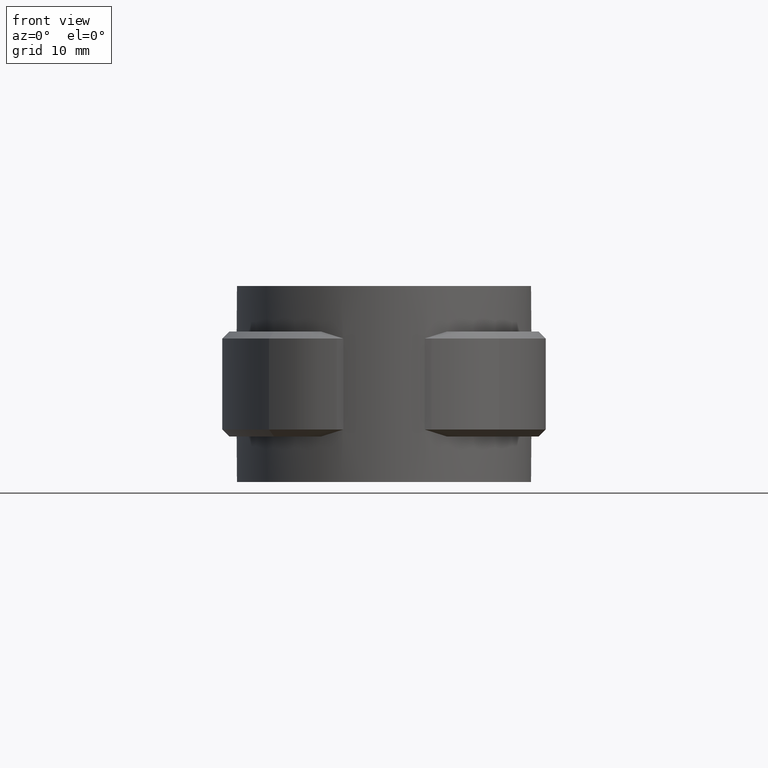
[diagram: clean part render]
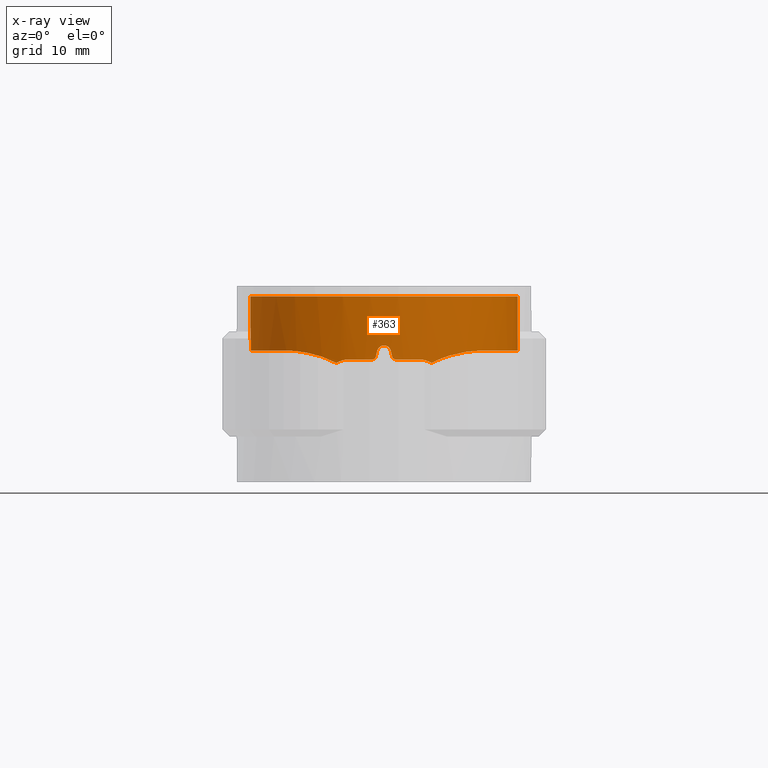
[diagram: x-ray — body ghosted, one internal face saturated and labeled with its STEP entity id]
A machine part, front view, then the same camera in x-ray: the body is ghosted and one INTERNAL B-rep face — a face not visible from any outside direction — is saturated and labeled: STEP entity #363.
In plain terms, the highlighted cylindrical surface (partial cylindrical patch) has radius 19.1 mm, axis along (0, 0, 1).
Its self-contained STEP definition (entity closure, byte-faithful):
#363 = ADVANCED_FACE( '', ( #708 ), #709, .T. );
#708 = FACE_OUTER_BOUND( '', #1448, .T. );
#709 = CYLINDRICAL_SURFACE( '', #1449, 19.1000000000000 );
#1448 = EDGE_LOOP( '', ( #2836, #2837, #2838, #2839, #2840, #2841, #2842, #2843, #2844, #2845, #2846, #2847, #2848, #2849, #2850, #2851 ) );
#1449 = AXIS2_PLACEMENT_3D( '', #2852, #2853, #2854 );
#2836 = ORIENTED_EDGE( '', *, *, #6588, .F. );
#2837 = ORIENTED_EDGE( '', *, *, #6589, .F. );
#2838 = ORIENTED_EDGE( '', *, *, #6590, .F. );
#2839 = ORIENTED_EDGE( '', *, *, #6591, .F. );
#2840 = ORIENTED_EDGE( '', *, *, #6592, .F. );
#2841 = ORIENTED_EDGE( '', *, *, #6593, .T. );
#2842 = ORIENTED_EDGE( '', *, *, #6594, .F. );
#2843 = ORIENTED_EDGE( '', *, *, #6595, .F. );
#2844 = ORIENTED_EDGE( '', *, *, #6596, .F. );
#2845 = ORIENTED_EDGE( '', *, *, #6597, .F. );
#2846 = ORIENTED_EDGE( '', *, *, #6598, .F. );
#2847 = ORIENTED_EDGE( '', *, *, #6599, .F. );
#2848 = ORIENTED_EDGE( '', *, *, #6600, .F. );
#2849 = ORIENTED_EDGE( '', *, *, #6601, .F. );
#2850 = ORIENTED_EDGE( '', *, *, #6602, .F. );
#2851 = ORIENTED_EDGE( '', *, *, #6603, .F. );
#2852 = CARTESIAN_POINT( '', ( 0.000000000000000, 0.000000000000000, 0.000000000000000 ) );
#2853 = DIRECTION( '', ( 0.000000000000000, 0.000000000000000, 1.00000000000000 ) );
#2854 = DIRECTION( '', ( 1.00000000000000, -6.12303176911189E-017, 0.000000000000000 ) );
#6588 = EDGE_CURVE( '', #7512, #7513, #7514, .T. );
#6589 = EDGE_CURVE( '', #7515, #7512, #7516, .T. );
#6590 = EDGE_CURVE( '', #7517, #7515, #7518, .T. );
#6591 = EDGE_CURVE( '', #7519, #7517, #7520, .T. );
#6592 = EDGE_CURVE( '', #7521, #7519, #7522, .T. );
#6593 = EDGE_CURVE( '', #7521, #7523, #7524, .T. );
#6594 = EDGE_CURVE( '', #7525, #7523, #7526, .T. );
#6595 = EDGE_CURVE( '', #7527, #7525, #7528, .T. );
#6596 = EDGE_CURVE( '', #7529, #7527, #7530, .T. );
#6597 = EDGE_CURVE( '', #7531, #7529, #7532, .T. );
#6598 = EDGE_CURVE( '', #7533, #7531, #7534, .T. );
#6599 = EDGE_CURVE( '', #7535, #7533, #7536, .T. );
#6600 = EDGE_CURVE( '', #7537, #7535, #7538, .T. );
#6601 = EDGE_CURVE( '', #7539, #7537, #7540, .T. );
#6602 = EDGE_CURVE( '', #7541, #7539, #7542, .T. );
#6603 = EDGE_CURVE( '', #7513, #7541, #7543, .T. );
#7512 = VERTEX_POINT( '', #9046 );
#7513 = VERTEX_POINT( '', #9047 );
#7514 = B_SPLINE_CURVE_WITH_KNOTS( '', 3, ( #9048, #9049, #9050, #9051, #9052, #9053, #9054, #9055 ), .UNSPECIFIED., .F., .F., ( 4, 2, 2, 4 ), ( 1.97925791081030E-016, 0.000994489686252687, 0.00149173452937893, 0.00198897937250518 ), .UNSPECIFIED. );
#7515 = VERTEX_POINT( '', #9056 );
#7516 = B_SPLINE_CURVE_WITH_KNOTS( '', 3, ( #9057, #9058, #9059, #9060, #9061, #9062, #9063, #9064, #9065, #9066, #9067, #9068 ), .UNSPECIFIED., .F., .F., ( 4, 2, 2, 2, 2, 4 ), ( 0.000000000000000, 0.00223644603303484, 0.00335466904955226, 0.00447289206606968, 0.00670933809910453, 0.00894578413213937 ), .UNSPECIFIED. );
#7517 = VERTEX_POINT( '', #9069 );
#7518 = B_SPLINE_CURVE_WITH_KNOTS( '', 3, ( #9070, #9071, #9072, #9073, #9074, #9075, #9076, #9077, #9078, #9079, #9080, #9081, #9082, #9083, #9084, #9085, #9086, #9087, #9088, #9089, #9090, #9091, #9092, #9093, #9094, #9095, #9096, #9097, #9098, #9099, #9100, #9101, #9102, #9103, #9104, #9105 ), .UNSPECIFIED., .F., .F., ( 4, 2, 2, 2, 2, 2, 2, 2, 2, 2, 2, 2, 2, 2, 2, 2, 2, 4 ), ( 0.000000000000000, 0.00475166728882034, 0.00593958411102543, 0.00712750093323052, 0.00950333457764069, 0.0118791682220509, 0.0130670850442560, 0.0142550018664610, 0.0190066691552814, 0.0201945859774865, 0.0213825027996916, 0.0237583364441018, 0.0249462532663069, 0.0261341700885119, 0.0285100037329221, 0.0308858373773323, 0.0332616710217425, 0.0380133383105628 ), .UNSPECIFIED. );
#7519 = VERTEX_POINT( '', #9106 );
#7520 = LINE( '', #9107, #9108 );
#7521 = VERTEX_POINT( '', #9109 );
#7522 = CIRCLE( '', #9110, 19.1000000000000 );
#7523 = VERTEX_POINT( '', #9111 );
#7524 = LINE( '', #9112, #9113 );
#7525 = VERTEX_POINT( '', #9114 );
#7526 = B_SPLINE_CURVE_WITH_KNOTS( '', 3, ( #9115, #9116, #9117, #9118, #9119, #9120, #9121, #9122, #9123, #9124, #9125, #9126, #9127, #9128, #9129, #9130, #9131, #9132, #9133, #9134, #9135, #9136, #9137, #9138, #9139, #9140, #9141, #9142, #9143, #9144, #9145, #9146, #9147, #9148, #9149, #9150 ), .UNSPECIFIED., .F., .F., ( 4, 2, 2, 2, 2, 2, 2, 2, 2, 2, 2, 2, 2, 2, 2, 2, 2, 4 ), ( 0.000000000000000, 0.00475173585367664, 0.00593966981709580, 0.00712760378051496, 0.00950347170735329, 0.0118793396341916, 0.0130672735976108, 0.0142552075610299, 0.0190069434147066, 0.0201948773781258, 0.0213828113415449, 0.0237586792683833, 0.0249466132318024, 0.0261345471952216, 0.0285104151220599, 0.0308862830488983, 0.0332621509757366, 0.0380138868294132 ), .UNSPECIFIED. );
#7527 = VERTEX_POINT( '', #9151 );
#7528 = B_SPLINE_CURVE_WITH_KNOTS( '', 3, ( #9152, #9153, #9154, #9155, #9156, #9157, #9158, #9159, #9160, #9161 ), .UNSPECIFIED., .F., .F., ( 4, 2, 2, 2, 4 ), ( 2.54367786189960E-016, 0.00221717465553031, 0.00443434931106037, 0.00665152396659043, 0.00886869862212048 ), .UNSPECIFIED. );
#7529 = VERTEX_POINT( '', #9162 );
#7530 = B_SPLINE_CURVE_WITH_KNOTS( '', 3, ( #9163, #9164, #9165, #9166, #9167, #9168, #9169, #9170 ), .UNSPECIFIED., .F., .F., ( 4, 2, 2, 4 ), ( 4.33680868994202E-018, 0.000994239728505949, 0.00149135959275892, 0.00198847945701190 ), .UNSPECIFIED. );
#7531 = VERTEX_POINT( '', #9171 );
#7532 = CIRCLE( '', #9172, 19.1000000000000 );
#7533 = VERTEX_POINT( '', #9173 );
#7534 = B_SPLINE_CURVE_WITH_KNOTS( '', 3, ( #9174, #9175, #9176, #9177, #9178, #9179 ), .UNSPECIFIED., .F., .F., ( 4, 2, 4 ), ( 2.16840434497101E-019, 0.000336337775742341, 0.000672675551484682 ), .UNSPECIFIED. );
#7535 = VERTEX_POINT( '', #9180 );
#7536 = ELLIPSE( '', #9181, 87.0111998839010, 19.1000000000000 );
#7537 = VERTEX_POINT( '', #9182 );
#7538 = B_SPLINE_CURVE_WITH_KNOTS( '', 3, ( #9183, #9184, #9185, #9186, #9187, #9188, #9189, #9190, #9191, #9192 ), .UNSPECIFIED., .F., .F., ( 4, 2, 2, 2, 4 ), ( 1.08420217248550E-019, 0.000671676872309648, 0.00134335374461929, 0.00201503061692894, 0.00268670748923859 ), .UNSPECIFIED. );
#7539 = VERTEX_POINT( '', #9193 );
#7540 = ELLIPSE( '', #9194, 87.0111554974908, 19.1000000000000 );
#7541 = VERTEX_POINT( '', #9195 );
#7542 = B_SPLINE_CURVE_WITH_KNOTS( '', 3, ( #9196, #9197, #9198, #9199, #9200, #9201 ), .UNSPECIFIED., .F., .F., ( 4, 2, 4 ), ( 1.06175769865612E-012, 0.000336327118998980, 0.000672654236936203 ), .UNSPECIFIED. );
#7543 = CIRCLE( '', #9202, 19.1000000000000 );
#9046 = CARTESIAN_POINT( '', ( 6.81905526878674, -17.8412579500783, -9.50984315978225 ) );
#9047 = CARTESIAN_POINT( '', ( 5.00000000000001, -18.4339360962329, -9.00000000000000 ) );
#9048 = CARTESIAN_POINT( '', ( 6.81905526878681, -17.8412579500783, -9.50984315978263 ) );
#9049 = CARTESIAN_POINT( '', ( 6.54606797206037, -17.9455956301490, -9.34377194447272 ) );
#9050 = CARTESIAN_POINT( '', ( 6.25697981576414, -18.0489218713348, -9.21811179728005 ) );
#9051 = CARTESIAN_POINT( '', ( 5.79870563454942, -18.1991993573056, -9.08865621529604 ) );
#9052 = CARTESIAN_POINT( '', ( 5.64089061904185, -18.2487782744803, -9.05543422189009 ) );
#9053 = CARTESIAN_POINT( '', ( 5.32286154237686, -18.3440644484210, -9.01122734908739 ) );
#9054 = CARTESIAN_POINT( '', ( 5.16225462618907, -18.3899263347414, -9.00000000000001 ) );
#9055 = CARTESIAN_POINT( '', ( 5.00000000000002, -18.4339360962329, -9.00000000000000 ) );
#9056 = CARTESIAN_POINT( '', ( 13.9497974310064, -13.0465800234959, -7.72134842581987 ) );
#9057 = CARTESIAN_POINT( '', ( 13.9497954125206, -13.0465784000564, -7.72133499237961 ) );
#9058 = CARTESIAN_POINT( '', ( 13.4388943300146, -13.5928492580895, -7.73208495331122 ) );
#9059 = CARTESIAN_POINT( '', ( 12.8991848821414, -14.1058136364962, -7.76985655857241 ) );
#9060 = CARTESIAN_POINT( '', ( 12.0473927316736, -14.8259423178299, -7.87181165090635 ) );
#9061 = CARTESIAN_POINT( '', ( 11.7561841678346, -15.0578109392465, -7.91361117780503 ) );
#9062 = CARTESIAN_POINT( '', ( 11.1671884797589, -15.4996592842449, -8.01298898541059 ) );
#9063 = CARTESIAN_POINT( '', ( 10.8685446083010, -15.7103939090100, -8.07063372135174 ) );
#9064 = CARTESIAN_POINT( '', ( 9.96146161010545, -16.3127630187514, -8.27055204157089 ) );
#9065 = CARTESIAN_POINT( '', ( 9.34169265753409, -16.6746458345190, -8.43895228852054 ) );
#9066 = CARTESIAN_POINT( '', ( 8.08185116317135, -17.3203555734521, -8.87947746419393 ) );
#9067 = CARTESIAN_POINT( '', ( 7.43687211988527, -17.6051239697605, -9.15322746837474 ) );
#9068 = CARTESIAN_POINT( '', ( 6.81905526878666, -17.8412579500783, -9.50984315978187 ) );
#9069 = CARTESIAN_POINT( '', ( 6.05609756097560, 18.1144605862815, -7.72310677885712 ) );
#9070 = CARTESIAN_POINT( '', ( 6.05609756097560, 18.1144605862815, -7.72310677885713 ) );
#9071 = CARTESIAN_POINT( '', ( 7.57988499216502, 17.6050219915457, -7.72562044002635 ) );
#9072 = CARTESIAN_POINT( '', ( 9.00816751026751, 16.9170964181711, -7.72756451349261 ) );
#9073 = CARTESIAN_POINT( '', ( 10.6780188819870, 15.8413301154164, -7.72556092751217 ) );
#9074 = CARTESIAN_POINT( '', ( 11.0061283400568, 15.6152236865161, -7.72500832282517 ) );
#9075 = CARTESIAN_POINT( '', ( 11.6503746423613, 15.1406354724747, -7.72378596501516 ) );
#9076 = CARTESIAN_POINT( '', ( 11.9668420762764, 14.8917493817034, -7.72311589650017 ) );
#9077 = CARTESIAN_POINT( '', ( 12.8849139716540, 14.1218634622731, -7.72140964571591 ) );
#9078 = CARTESIAN_POINT( '', ( 13.4598607434121, 13.5745846150423, -7.72102026270238 ) );
#9079 = CARTESIAN_POINT( '', ( 14.5374344637100, 12.4137100786320, -7.72209448719827 ) );
#9080 = CARTESIAN_POINT( '', ( 15.0400601391704, 11.8001131609034, -7.72312996766405 ) );
#9081 = CARTESIAN_POINT( '', ( 15.7386007948681, 10.8289179939538, -7.72407904110368 ) );
#9082 = CARTESIAN_POINT( '', ( 15.9628272010318, 10.4956569109212, -7.72430530797458 ) );
#9083 = CARTESIAN_POINT( '', ( 16.3891020472364, 9.81672044661760, -7.72448466694065 ) );
#9084 = CARTESIAN_POINT( '', ( 16.5905113531249, 9.47222763162375, -7.72443824659079 ) );
#9085 = CARTESIAN_POINT( '', ( 17.5402823297960, 7.72522543402083, -7.72358484488161 ) );
#9086 = CARTESIAN_POINT( '', ( 18.1194790042441, 6.25024218978829, -7.72049880465369 ) );
#9087 = CARTESIAN_POINT( '', ( 18.6122679087687, 4.30745559678048, -7.72188660815230 ) );
#9088 = CARTESIAN_POINT( '', ( 18.6986602107553, 3.91524051238957, -7.72231569395808 ) );
#9089 = CARTESIAN_POINT( '', ( 18.8457733830484, 3.13142580016287, -7.72318230473617 ) );
#9090 = CARTESIAN_POINT( '', ( 18.9067965259002, 2.73867230654701, -7.72362076679009 ) );
#9091 = CARTESIAN_POINT( '', ( 19.0528744824532, 1.55791445645596, -7.72466879871171 ) );
#9092 = CARTESIAN_POINT( '', ( 19.1010789124707, 0.767422245583554, -7.72496423500658 ) );
#9093 = CARTESIAN_POINT( '', ( 19.0994331793958, -0.423308819489145, -7.72453062126620 ) );
#9094 = CARTESIAN_POINT( '', ( 19.0865240286564, -0.821053671581318, -7.72425164256729 ) );
#9095 = CARTESIAN_POINT( '', ( 19.0355145642650, -1.61824407978250, -7.72352294976923 ) );
#9096 = CARTESIAN_POINT( '', ( 18.9971972768681, -2.01904579157393, -7.72307157109594 ) );
#9097 = CARTESIAN_POINT( '', ( 18.8453894194590, -3.20959479807132, -7.72177584465474 ) );
#9098 = CARTESIAN_POINT( '', ( 18.6954236915003, -3.98980160861872, -7.72102212156009 ) );
#9099 = CARTESIAN_POINT( '', ( 18.3008855043446, -5.52403599171066, -7.72185265540332 ) );
#9100 = CARTESIAN_POINT( '', ( 18.0563078995319, -6.27806224219268, -7.72306799754255 ) );
#9101 = CARTESIAN_POINT( '', ( 17.4709619283910, -7.75949803635878, -7.72476429751525 ) );
#9102 = CARTESIAN_POINT( '', ( 17.1277459475978, -8.49031780562762, -7.72522996562817 ) );
#9103 = CARTESIAN_POINT( '', ( 15.9774650379405, -10.5863743418335, -7.72453105418573 ) );
#9104 = CARTESIAN_POINT( '', ( 15.0472731359111, -11.8731220703944, -7.72082047648107 ) );
#9105 = CARTESIAN_POINT( '', ( 13.9497955370358, -13.0465782669210, -7.72131326548412 ) );
#9106 = CARTESIAN_POINT( '', ( 6.05609756097560, 18.1144605862815, 0.000000000000000 ) );
#9107 = CARTESIAN_POINT( '', ( 6.05609756097560, 18.1144605862815, 0.000000000000000 ) );
#9108 = VECTOR( '', #12716, 1000.00000000000 );
#9109 = CARTESIAN_POINT( '', ( -6.05609756097560, 18.1144605862815, 0.000000000000000 ) );
#9110 = AXIS2_PLACEMENT_3D( '', #12717, #12718, #12719 );
#9111 = CARTESIAN_POINT( '', ( -6.05609756097560, 18.1144605862815, -7.72310677885712 ) );
#9112 = CARTESIAN_POINT( '', ( -6.05609756097560, 18.1144605862815, 0.000000000000000 ) );
#9113 = VECTOR( '', #12720, 1000.00000000000 );
#9114 = CARTESIAN_POINT( '', ( -13.9495002325756, -13.0471055655874, -7.72147210245199 ) );
#9115 = CARTESIAN_POINT( '', ( -13.9493946604696, -13.0470068830542, -7.72131343666162 ) );
#9116 = CARTESIAN_POINT( '', ( -15.0469255575133, -11.8735659726484, -7.72086893969347 ) );
#9117 = CARTESIAN_POINT( '', ( -15.9754902272431, -10.5886267509001, -7.72452224589744 ) );
#9118 = CARTESIAN_POINT( '', ( -16.9318548389408, -8.84760550897533, -7.72511282097642 ) );
#9119 = CARTESIAN_POINT( '', ( -17.1127590124143, -8.49255882704011, -7.72507434829953 ) );
#9120 = CARTESIAN_POINT( '', ( -17.4533858333518, -7.76848758767492, -7.72469383738137 ) );
#9121 = CARTESIAN_POINT( '', ( -17.6132070502522, -7.39894935716129, -7.72435029883481 ) );
#9122 = CARTESIAN_POINT( '', ( -18.0540592052706, -6.28482322361987, -7.72307801222045 ) );
#9123 = CARTESIAN_POINT( '', ( -18.2991352403339, -5.52981623309247, -7.72186029597342 ) );
#9124 = CARTESIAN_POINT( '', ( -18.6941143166352, -3.99591141448074, -7.72102095234215 ) );
#9125 = CARTESIAN_POINT( '', ( -18.8440156359498, -3.21701309809631, -7.72176843711674 ) );
#9126 = CARTESIAN_POINT( '', ( -18.9959638412929, -2.03036508554608, -7.72305892498589 ) );
#9127 = CARTESIAN_POINT( '', ( -19.0344953012078, -1.63053996612878, -7.72351022653802 ) );
#9128 = CARTESIAN_POINT( '', ( -19.0861440920536, -0.830527332610736, -7.72424442688097 ) );
#9129 = CARTESIAN_POINT( '', ( -19.0992621820245, -0.431685932661075, -7.72452589586167 ) );
#9130 = CARTESIAN_POINT( '', ( -19.1028001199557, 1.55683199213116, -7.72525832470260 ) );
#9131 = CARTESIAN_POINT( '', ( -18.9099461684107, 3.12970534575030, -7.72274023031296 ) );
#9132 = CARTESIAN_POINT( '', ( -18.4183891166097, 5.07283326424858, -7.72133685120373 ) );
#9133 = CARTESIAN_POINT( '', ( -18.3076371761421, 5.45888524441150, -7.72123822413958 ) );
#9134 = CARTESIAN_POINT( '', ( -18.0638503475127, 6.21822464274006, -7.72154038961963 ) );
#9135 = CARTESIAN_POINT( '', ( -17.9305318291623, 6.59267123495357, -7.72188416329849 ) );
#9136 = CARTESIAN_POINT( '', ( -17.4968559939063, 7.70059563174549, -7.72303659295301 ) );
#9137 = CARTESIAN_POINT( '', ( -17.1629070093564, 8.41871687273530, -7.72392066943203 ) );
#9138 = CARTESIAN_POINT( '', ( -16.5945708255881, 9.46508118366199, -7.72443620625304 ) );
#9139 = CARTESIAN_POINT( '', ( -16.3938579132923, 9.80871836439765, -7.72448437886565 ) );
#9140 = CARTESIAN_POINT( '', ( -15.9694686003572, 10.4854950219574, -7.72431033092765 ) );
#9141 = CARTESIAN_POINT( '', ( -15.7449556609652, 10.8197239591928, -7.72408643352110 ) );
#9142 = CARTESIAN_POINT( '', ( -15.0446485330467, 11.7944381719801, -7.72313863958670 ) );
#9143 = CARTESIAN_POINT( '', ( -14.5413194962993, 12.4091672085947, -7.72210127062620 ) );
#9144 = CARTESIAN_POINT( '', ( -13.4639251185258, 13.5705609282390, -7.72102142538463 ) );
#9145 = CARTESIAN_POINT( '', ( -12.8898559434420, 14.1172218983093, -7.72140308669869 ) );
#9146 = CARTESIAN_POINT( '', ( -11.6697970816091, 15.1413399817472, -7.72366536320049 ) );
#9147 = CARTESIAN_POINT( '', ( -11.0200314457558, 15.6206307269095, -7.72514674941513 ) );
#9148 = CARTESIAN_POINT( '', ( -9.01054360190754, 16.9162907720867, -7.72756923279861 ) );
#9149 = CARTESIAN_POINT( '', ( -7.57990800194723, 17.6050142988250, -7.72562047798360 ) );
#9150 = CARTESIAN_POINT( '', ( -6.05609756097560, 18.1144605862815, -7.72310677885713 ) );
#9151 = CARTESIAN_POINT( '', ( -6.81905526878317, -17.8412579500797, -9.50984315978192 ) );
#9152 = CARTESIAN_POINT( '', ( -6.81905526878350, -17.8412579500795, -9.50984315978370 ) );
#9153 = CARTESIAN_POINT( '', ( -7.43598750137267, -17.6054620772274, -9.15373808708276 ) );
#9154 = CARTESIAN_POINT( '', ( -8.06693102980499, -17.3272357695888, -8.88556634490479 ) );
#9155 = CARTESIAN_POINT( '', ( -9.32416421350631, -16.6843770448320, -8.44423180668444 ) );
#9156 = CARTESIAN_POINT( '', ( -9.95472130519614, -16.3171536835714, -8.27209422177304 ) );
#9157 = CARTESIAN_POINT( '', ( -11.1745578306009, -15.5072640361854, -8.00313284810749 ) );
#9158 = CARTESIAN_POINT( '', ( -11.7673945676907, -15.0628417343531, -7.90523827948143 ) );
#9159 = CARTESIAN_POINT( '', ( -12.9007045533394, -14.1043467786827, -7.76976278081282 ) );
#9160 = CARTESIAN_POINT( '', ( -13.4393749583186, -13.5923016643587, -7.73205163330413 ) );
#9161 = CARTESIAN_POINT( '', ( -13.9493934299933, -13.0470081986354, -7.72134344142362 ) );
#9162 = CARTESIAN_POINT( '', ( -5.00000000000005, -18.4339360962329, -9.00000000000000 ) );
#9163 = CARTESIAN_POINT( '', ( -5.00000000000006, -18.4339360962329, -9.00000000000000 ) );
#9164 = CARTESIAN_POINT( '', ( -5.32461539822046, -18.3458877823715, -9.00000000000001 ) );
#9165 = CARTESIAN_POINT( '', ( -5.63936351103996, -18.2513298483383, -9.04428000316972 ) );
#9166 = CARTESIAN_POINT( '', ( -6.09787903306995, -18.1011529137972, -9.17286035344457 ) );
#9167 = CARTESIAN_POINT( '', ( -6.24918469729723, -18.0494241971064, -9.22663818442990 ) );
#9168 = CARTESIAN_POINT( '', ( -6.54128039419890, -17.9456310569590, -9.35360289695467 ) );
#9169 = CARTESIAN_POINT( '', ( -6.68253995693206, -17.8934350700536, -9.42679437319094 ) );
#9170 = CARTESIAN_POINT( '', ( -6.81905526878283, -17.8412579500798, -9.50984315978014 ) );
#9171 = CARTESIAN_POINT( '', ( -1.65000000000003, -19.0285969004549, -8.99999999999997 ) );
#9172 = AXIS2_PLACEMENT_3D( '', #12721, #12722, #12723 );
#9173 = CARTESIAN_POINT( '', ( -1.16219512100915, -19.0646086374912, -8.60975609337373 ) );
#9174 = CARTESIAN_POINT( '', ( -1.16219512100915, -19.0646086374912, -8.60975609337373 ) );
#9175 = CARTESIAN_POINT( '', ( -1.18715765708161, -19.0630868995849, -8.72070070258704 ) );
#9176 = CARTESIAN_POINT( '', ( -1.24923773707083, -19.0593103406564, -8.81980675290700 ) );
#9177 = CARTESIAN_POINT( '', ( -1.42662763242333, -19.0468537870059, -8.96151006055798 ) );
#9178 = CARTESIAN_POINT( '', ( -1.53670637462590, -19.0384207714867, -8.99999999999994 ) );
#9179 = CARTESIAN_POINT( '', ( -1.65000000000003, -19.0285969004549, -8.99999999999994 ) );
#9180 = CARTESIAN_POINT( '', ( -0.975610000000023, -19.0750671067732, -7.78048800000004 ) );
#9181 = AXIS2_PLACEMENT_3D( '', #12724, #12725, #12726 );
#9182 = CARTESIAN_POINT( '', ( 0.975609757981812, -19.0750671191514, -7.78048781325256 ) );
#9183 = CARTESIAN_POINT( '', ( 0.975609757981811, -19.0750671191514, -7.78048781325256 ) );
#9184 = CARTESIAN_POINT( '', ( 0.925757385009205, -19.0776168591459, -7.55892180128992 ) );
#9185 = CARTESIAN_POINT( '', ( 0.801997831383428, -19.0839791880777, -7.36098161968767 ) );
#9186 = CARTESIAN_POINT( '', ( 0.447436048285923, -19.0955822942172, -7.07731587360206 ) );
#9187 = CARTESIAN_POINT( '', ( 0.227117419891252, -19.1000000160627, -6.99999971248023 ) );
#9188 = CARTESIAN_POINT( '', ( -0.227120121551981, -19.0999999839372, -7.00000028065426 ) );
#9189 = CARTESIAN_POINT( '', ( -0.447488444089584, -19.0955808086857, -7.07734852942236 ) );
#9190 = CARTESIAN_POINT( '', ( -0.801994740210281, -19.0839790600733, -7.36098809107857 ) );
#9191 = CARTESIAN_POINT( '', ( -0.925757662153671, -19.0776168456052, -7.55892194611683 ) );
#9192 = CARTESIAN_POINT( '', ( -0.975610000000020, -19.0750671067732, -7.78048800000004 ) );
#9193 = CARTESIAN_POINT( '', ( 1.16219499999999, -19.0646086448680, -8.60975599999999 ) );
#9194 = AXIS2_PLACEMENT_3D( '', #12727, #12728, #12729 );
#9195 = CARTESIAN_POINT( '', ( 1.64999999892696, -19.0285969005479, -9.00000000000000 ) );
#9196 = CARTESIAN_POINT( '', ( 1.64999999999995, -19.0285969004549, -8.99999999999995 ) );
#9197 = CARTESIAN_POINT( '', ( 1.53670633508326, -19.0384207749155, -9.00000000048620 ) );
#9198 = CARTESIAN_POINT( '', ( 1.42662639973997, -19.0468538504881, -8.96150724786316 ) );
#9199 = CARTESIAN_POINT( '', ( 1.24924883677624, -19.0593095842976, -8.81981751941029 ) );
#9200 = CARTESIAN_POINT( '', ( 1.18715754849075, -19.0630869063637, -8.72070066218240 ) );
#9201 = CARTESIAN_POINT( '', ( 1.16219499999998, -19.0646086448680, -8.60975599999999 ) );
#9202 = AXIS2_PLACEMENT_3D( '', #12730, #12731, #12732 );
#12716 = DIRECTION( '', ( 0.000000000000000, 0.000000000000000, -1.00000000000000 ) );
#12717 = CARTESIAN_POINT( '', ( 0.000000000000000, 0.000000000000000, 0.000000000000000 ) );
#12718 = DIRECTION( '', ( 0.000000000000000, 0.000000000000000, 1.00000000000000 ) );
#12719 = DIRECTION( '', ( 1.00000000000000, 0.000000000000000, 0.000000000000000 ) );
#12720 = DIRECTION( '', ( 0.000000000000000, 0.000000000000000, -1.00000000000000 ) );
#12721 = CARTESIAN_POINT( '', ( 0.000000000000000, 0.000000000000000, -9.00000000000000 ) );
#12722 = DIRECTION( '', ( 6.12303176911189E-017, 0.000000000000000, -1.00000000000000 ) );
#12723 = DIRECTION( '', ( -1.00000000000000, 0.000000000000000, -6.12303176911189E-017 ) );
#12724 = CARTESIAN_POINT( '', ( 0.000000000000000, 0.000000000000000, -3.44443890776446 ) );
#12725 = DIRECTION( '', ( 0.975609806487711, 0.000000000000000, -0.219511971165610 ) );
#12726 = DIRECTION( '', ( -0.219511971165610, 0.000000000000000, -0.975609806487711 ) );
#12727 = CARTESIAN_POINT( '', ( 0.000000000000000, 0.000000000000000, -3.44444212055027 ) );
#12728 = DIRECTION( '', ( -0.975609781292647, 0.000000000000000, -0.219512083143762 ) );
#12729 = DIRECTION( '', ( 0.219512083143762, 0.000000000000000, -0.975609781292647 ) );
#12730 = CARTESIAN_POINT( '', ( 0.000000000000000, 0.000000000000000, -9.00000000000000 ) );
#12731 = DIRECTION( '', ( 6.12303176911189E-017, 0.000000000000000, -1.00000000000000 ) );
#12732 = DIRECTION( '', ( -1.00000000000000, 0.000000000000000, -6.12303176911189E-017 ) );